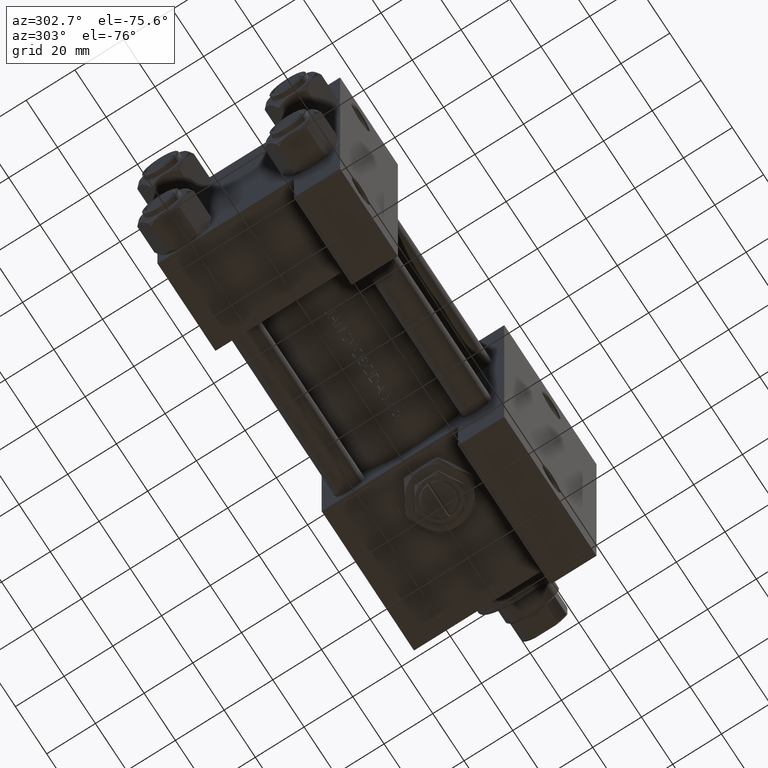
[diagram: clean part render]
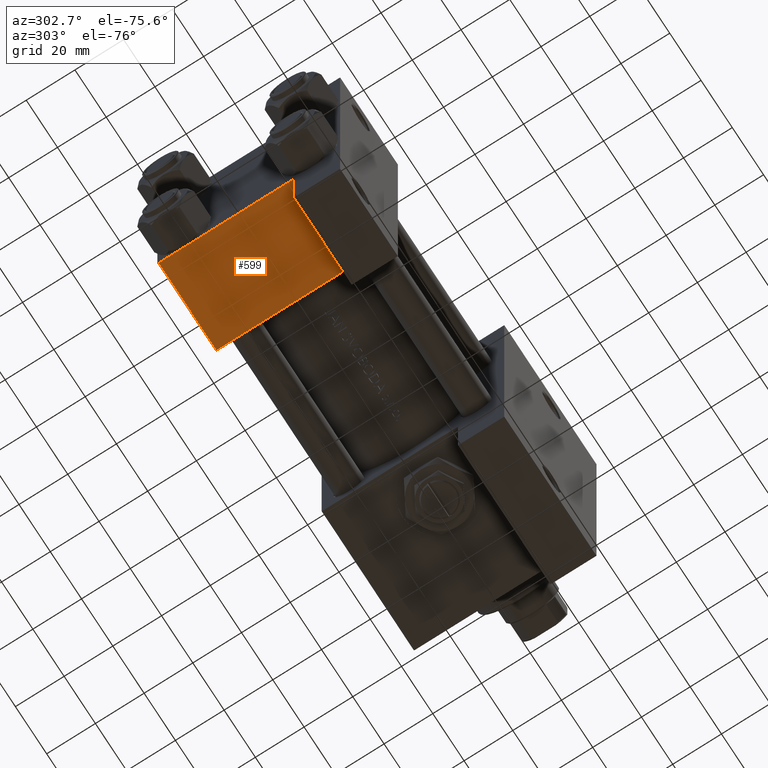
[diagram: same view with one face highlighted and labeled with its STEP entity id]
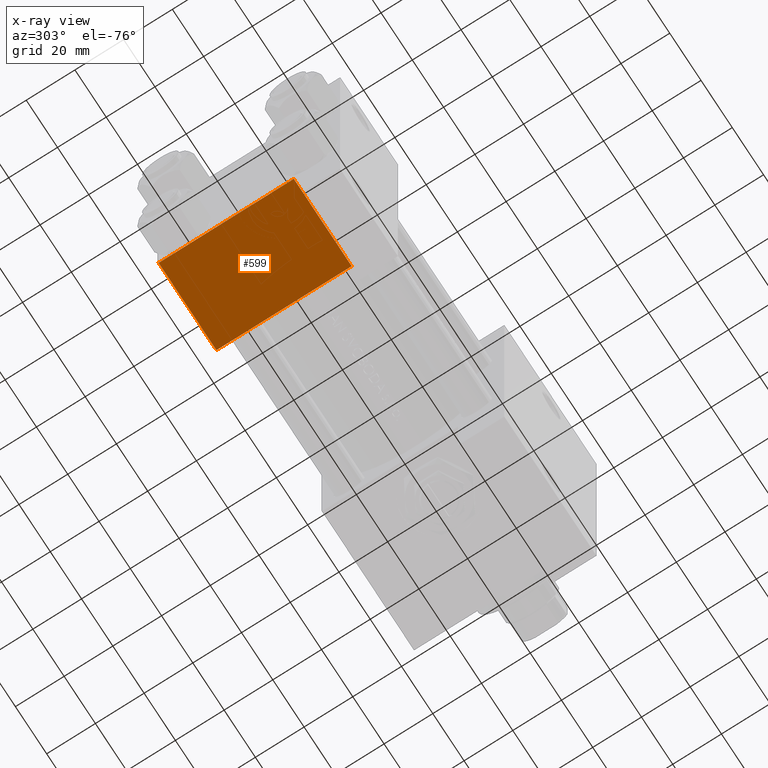
[diagram: x-ray of the same camera — body ghosted, the highlighted face saturated]
A machine part, auxiliary view. The second image highlights one B-rep face of the part: STEP entity #599.
The next image is the same camera in x-ray: the body ghosted, the highlighted face saturated — about 0% of this face is hidden behind the body in this view.
In plain terms, the highlighted planar face has unit normal (0, 0, -1).
Its self-contained STEP definition (entity closure, byte-faithful):
#287 = CARTESIAN_POINT ( 'NONE',  ( 8.470280871287256020E-15, 37.50000000000002842, -18.49999999999999645 ) ) ;
#598 = CARTESIAN_POINT ( 'NONE',  ( 37.00000000000000000, 37.49999999999999289, 37.00000000000000000 ) ) ;
#599 = ADVANCED_FACE ( 'NONE', ( #21516 ), #32733, .T. ) ;
#2169 = CARTESIAN_POINT ( 'NONE',  ( 0.000000000000000000, 37.49999999999999289, 37.50000000000000000 ) ) ;
#3869 = EDGE_CURVE ( 'NONE', #19646, #15847, #23461, .T. ) ;
#5061 = ORIENTED_EDGE ( 'NONE', *, *, #40064, .T. ) ;
#6256 = AXIS2_PLACEMENT_3D ( 'NONE', #48400, #47903, #25748 ) ;
#8367 = VERTEX_POINT ( 'NONE', #37790 ) ;
#9320 = VERTEX_POINT ( 'NONE', #11964 ) ;
#9336 = CARTESIAN_POINT ( 'NONE',  ( 0.000000000000000000, 37.49999999999999289, -18.49999999999999645 ) ) ;
#10876 = LINE ( 'NONE', #21835, #12348 ) ;
#11964 = CARTESIAN_POINT ( 'NONE',  ( 0.000000000000000000, 37.49999999999999289, 37.00000000000000000 ) ) ;
#12348 = VECTOR ( 'NONE', #18346, 1000.000000000000000 ) ;
#14788 = VECTOR ( 'NONE', #41701, 1000.000000000000000 ) ;
#15847 = VERTEX_POINT ( 'NONE', #27204 ) ;
#18346 = DIRECTION ( 'NONE',  ( 0.000000000000000000, 0.000000000000000000, -1.000000000000000000 ) ) ;
#19646 = VERTEX_POINT ( 'NONE', #9336 ) ;
#20393 = DIRECTION ( 'NONE',  ( 0.000000000000000000, 0.000000000000000000, -1.000000000000000000 ) ) ;
#21516 = FACE_OUTER_BOUND ( 'NONE', #22506, .T. ) ;
#21835 = CARTESIAN_POINT ( 'NONE',  ( 37.00000000000000000, 37.49999999999999289, 37.50000000000000000 ) ) ;
#22506 = EDGE_LOOP ( 'NONE', ( #33897, #23211, #49209, #5061 ) ) ;
#23211 = ORIENTED_EDGE ( 'NONE', *, *, #40903, .F. ) ;
#23461 = LINE ( 'NONE', #287, #29443 ) ;
#24198 = DIRECTION ( 'NONE',  ( 1.000000000000000000, -3.750753461571474945E-16, 0.000000000000000000 ) ) ;
#25748 = DIRECTION ( 'NONE',  ( 0.000000000000000000, -0.000000000000000000, 1.000000000000000000 ) ) ;
#27204 = CARTESIAN_POINT ( 'NONE',  ( 37.00000000000000711, 37.50000000000000711, -18.50000000000000355 ) ) ;
#29075 = LINE ( 'NONE', #2169, #48114 ) ;
#29443 = VECTOR ( 'NONE', #24198, 1000.000000000000000 ) ;
#32733 = PLANE ( 'NONE',  #6256 ) ;
#33897 = ORIENTED_EDGE ( 'NONE', *, *, #3869, .F. ) ;
#34731 = LINE ( 'NONE', #598, #14788 ) ;
#37790 = CARTESIAN_POINT ( 'NONE',  ( 37.00000000000000000, 37.49999999999999289, 37.00000000000000000 ) ) ;
#40064 = EDGE_CURVE ( 'NONE', #8367, #15847, #10876, .T. ) ;
#40903 = EDGE_CURVE ( 'NONE', #9320, #19646, #29075, .T. ) ;
#41701 = DIRECTION ( 'NONE',  ( 1.000000000000000000, 0.000000000000000000, 0.000000000000000000 ) ) ;
#42362 = EDGE_CURVE ( 'NONE', #9320, #8367, #34731, .T. ) ;
#47903 = DIRECTION ( 'NONE',  ( -0.000000000000000000, 1.000000000000000000, 0.000000000000000000 ) ) ;
#48114 = VECTOR ( 'NONE', #20393, 1000.000000000000000 ) ;
#48400 = CARTESIAN_POINT ( 'NONE',  ( 37.00000000000000000, 37.49999999999999289, 37.50000000000000000 ) ) ;
#49209 = ORIENTED_EDGE ( 'NONE', *, *, #42362, .T. ) ;